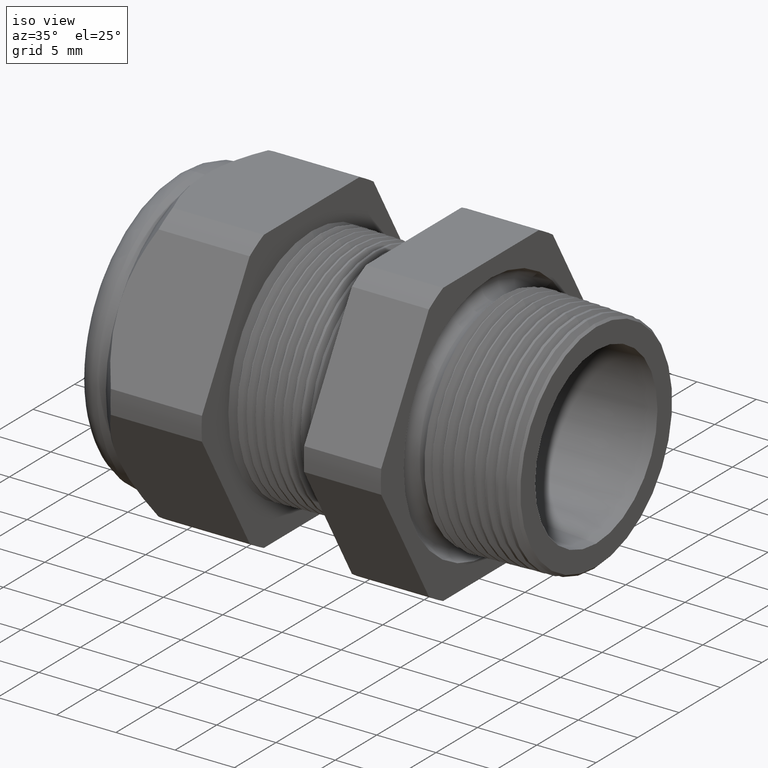
[diagram: clean part render]
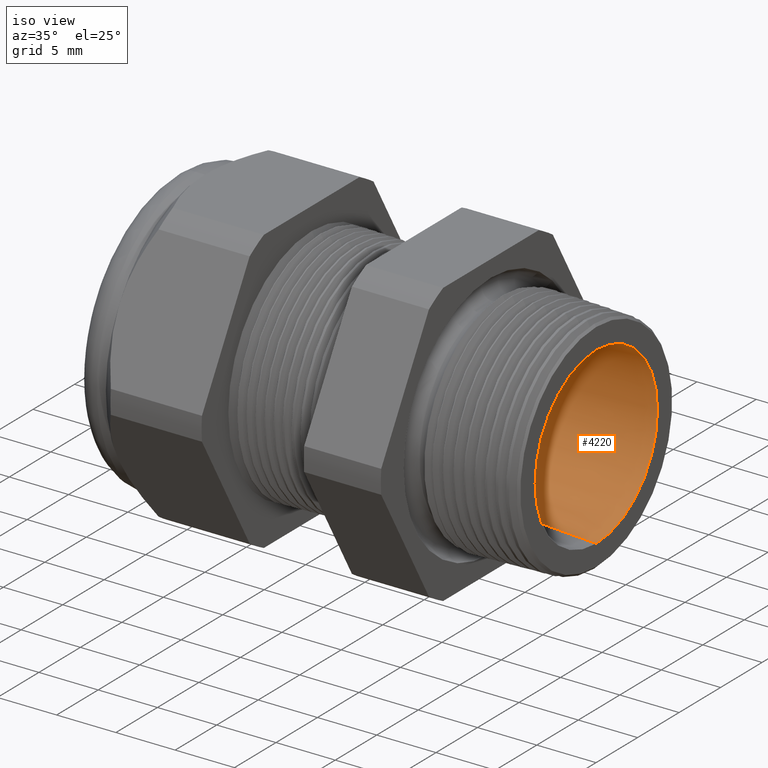
[diagram: same view with one face highlighted and labeled with its STEP entity id]
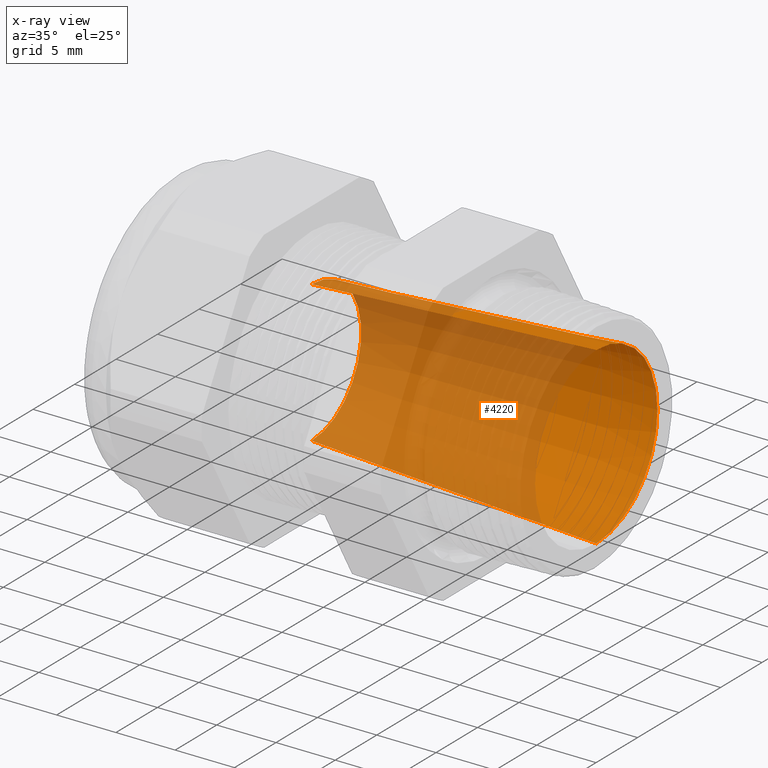
[diagram: x-ray of the same camera — body ghosted, the highlighted face saturated]
A machine part, iso view. The second image highlights one B-rep face of the part: STEP entity #4220.
The next image is the same camera in x-ray: the body ghosted, the highlighted face saturated — about 66% of this face is hidden behind the body in this view.
In plain terms, the highlighted conical surface has half-angle 3.344 deg.
Its self-contained STEP definition (entity closure, byte-faithful):
#1008 = CARTESIAN_POINT ( 'NONE',  ( 0.03999999999999997300, 0.0000000000000000000, -0.2902429637573903900 ) ) ;
#1014 = CARTESIAN_POINT ( 'NONE',  ( 0.03999999999999997300, 3.554451165405293600E-017, 0.2902429637573903900 ) ) ;
#1015 = DIRECTION ( 'NONE',  ( 0.9982972455772092200, 7.143596323732995500E-018, 0.05833189070274503300 ) ) ;
#1016 = VECTOR ( 'NONE', #1015, 39.37007874015748900 ) ;
#1017 = CARTESIAN_POINT ( 'NONE',  ( -0.9054330708661418900, 2.877919977996280400E-017, 0.2350000000000000100 ) ) ;
#1022 = LINE ( 'NONE', #1017, #1016 ) ;
#1158 = DIRECTION ( 'NONE',  ( 0.9982972455772092200, 0.0000000000000000000, -0.05833189070274503300 ) ) ;
#1159 = VECTOR ( 'NONE', #1158, 39.37007874015748900 ) ;
#1160 = CARTESIAN_POINT ( 'NONE',  ( -0.9054330708661418900, 0.0000000000000000000, -0.2350000000000000100 ) ) ;
#1161 = LINE ( 'NONE', #1160, #1159 ) ;
#1175 = CARTESIAN_POINT ( 'NONE',  ( -0.9054330708661418900, 0.0000000000000000000, -0.2350000000000000100 ) ) ;
#1176 = CARTESIAN_POINT ( 'NONE',  ( -0.9054330708661418900, 2.877919977996280400E-017, 0.2350000000000000100 ) ) ;
#2169 = DIRECTION ( 'NONE',  ( 0.0000000000000000000, 0.0000000000000000000, -1.000000000000000000 ) ) ;
#2170 = DIRECTION ( 'NONE',  ( 1.000000000000000000, 0.0000000000000000000, 0.0000000000000000000 ) ) ;
#2171 = CARTESIAN_POINT ( 'NONE',  ( 0.03999999999999997300, 0.0000000000000000000, 0.0000000000000000000 ) ) ;
#2172 = AXIS2_PLACEMENT_3D ( 'NONE', #2171, #2170, #2169 ) ;
#2173 = DIRECTION ( 'NONE',  ( 0.0000000000000000000, 0.0000000000000000000, -1.000000000000000000 ) ) ;
#2174 = DIRECTION ( 'NONE',  ( 1.000000000000000000, 0.0000000000000000000, 0.0000000000000000000 ) ) ;
#2175 = CARTESIAN_POINT ( 'NONE',  ( -0.9054330708661418900, 0.0000000000000000000, 0.0000000000000000000 ) ) ;
#2176 = AXIS2_PLACEMENT_3D ( 'NONE', #2175, #2174, #2173 ) ;
#2177 = CIRCLE ( 'NONE', #2172, 0.2902429637573903900 ) ;
#2178 = CONICAL_SURFACE ( 'NONE', #2176, 0.2350000000000000100, 0.05836502156429304600 ) ;
#2179 = FACE_OUTER_BOUND ( 'NONE', #4221, .T. ) ;
#2180 = DIRECTION ( 'NONE',  ( 0.0000000000000000000, 0.0000000000000000000, -1.000000000000000000 ) ) ;
#2181 = DIRECTION ( 'NONE',  ( 1.000000000000000000, 0.0000000000000000000, 0.0000000000000000000 ) ) ;
#2182 = CARTESIAN_POINT ( 'NONE',  ( -0.9054330708661418900, 0.0000000000000000000, 0.0000000000000000000 ) ) ;
#2183 = AXIS2_PLACEMENT_3D ( 'NONE', #2182, #2181, #2180 ) ;
#2184 = CIRCLE ( 'NONE', #2183, 0.2350000000000000100 ) ;
#3650 = EDGE_CURVE ( 'NONE', #3730, #3651, #1022, .T. ) ;
#3651 = VERTEX_POINT ( 'NONE', #1014 ) ;
#3654 = VERTEX_POINT ( 'NONE', #1008 ) ;
#3710 = EDGE_CURVE ( 'NONE', #3731, #3654, #1161, .T. ) ;
#3730 = VERTEX_POINT ( 'NONE', #1176 ) ;
#3731 = VERTEX_POINT ( 'NONE', #1175 ) ;
#4219 = EDGE_CURVE ( 'NONE', #3731, #3730, #2184, .T. ) ;
#4220 = ADVANCED_FACE ( 'NONE', ( #2179 ), #2178, .F. ) ;
#4221 = EDGE_LOOP ( 'NONE', ( #4222, #4223, #4224, #4225 ) ) ;
#4222 = ORIENTED_EDGE ( 'NONE', *, *, #3650, .F. ) ;
#4223 = ORIENTED_EDGE ( 'NONE', *, *, #4219, .F. ) ;
#4224 = ORIENTED_EDGE ( 'NONE', *, *, #3710, .T. ) ;
#4225 = ORIENTED_EDGE ( 'NONE', *, *, #4226, .T. ) ;
#4226 = EDGE_CURVE ( 'NONE', #3654, #3651, #2177, .T. ) ;